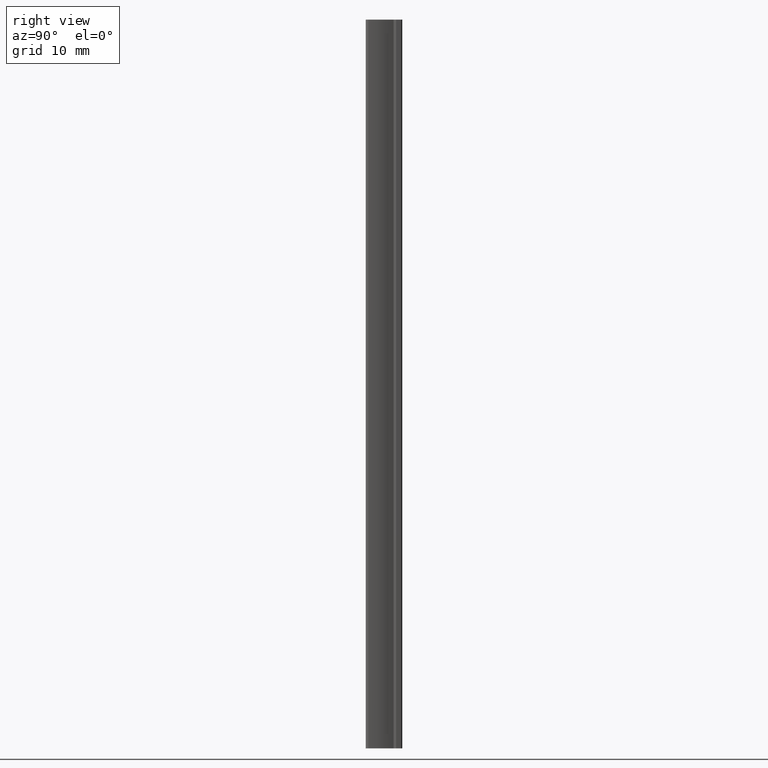
[diagram: clean part render]
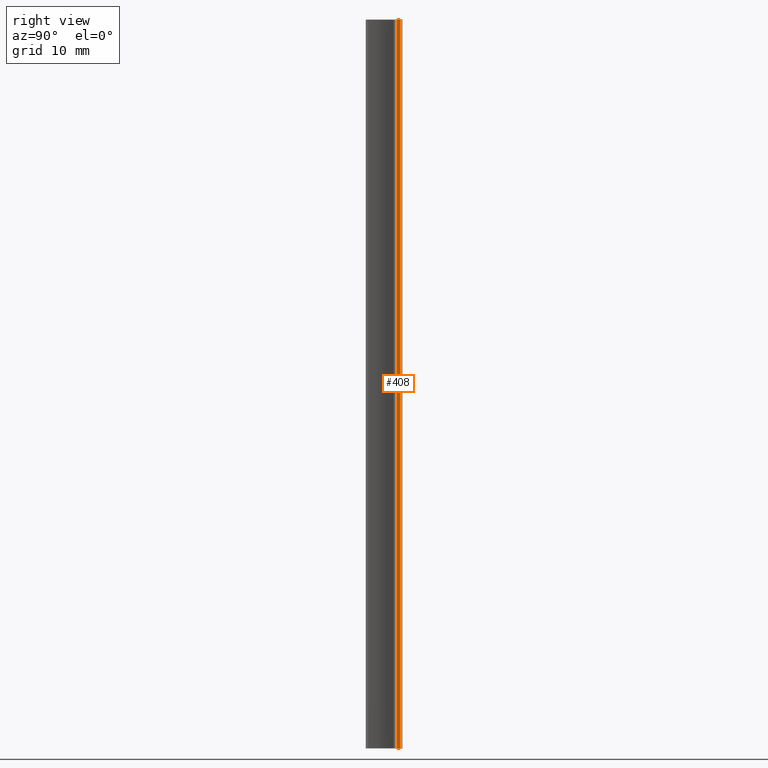
[diagram: same view with one face highlighted and labeled with its STEP entity id]
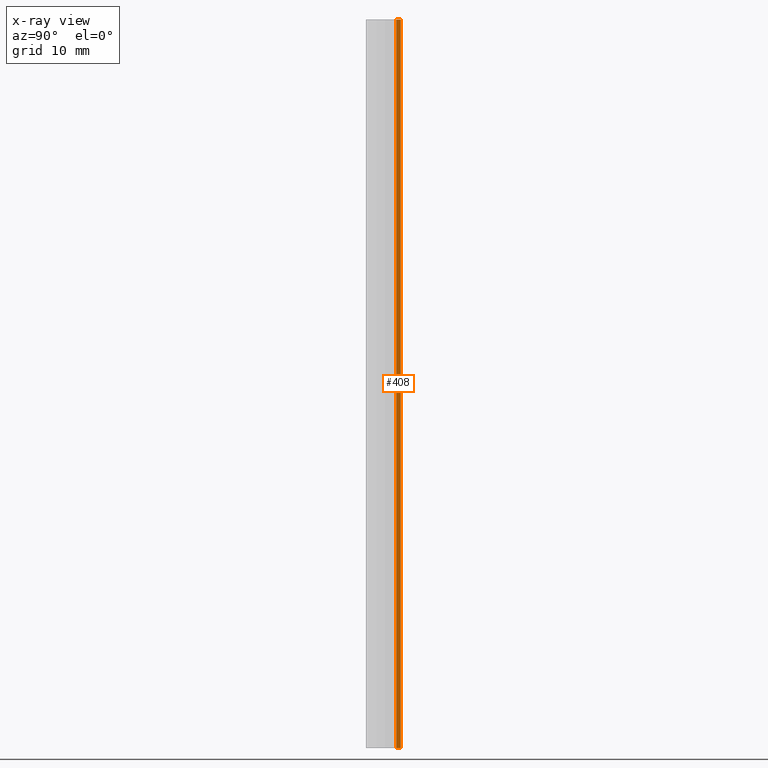
[diagram: x-ray of the same camera — body ghosted, the highlighted face saturated]
A machine part, right view. The second image highlights one B-rep face of the part: STEP entity #408.
The next image is the same camera in x-ray: the body ghosted, the highlighted face saturated — about 0% of this face is hidden behind the body in this view.
In plain terms, the highlighted planar face has unit normal (1, 0, 0).
Its self-contained STEP definition (entity closure, byte-faithful):
#20=PLANE('',#474);
#38=FACE_OUTER_BOUND('',#60,.T.);
#60=EDGE_LOOP('',(#335,#336,#337,#338));
#88=LINE('',#703,#120);
#93=LINE('',#720,#125);
#94=LINE('',#723,#126);
#95=LINE('',#726,#127);
#120=VECTOR('',#568,10.);
#125=VECTOR('',#587,10.);
#126=VECTOR('',#590,10.);
#127=VECTOR('',#595,10.);
#189=VERTEX_POINT('',#700);
#190=VERTEX_POINT('',#702);
#195=VERTEX_POINT('',#718);
#196=VERTEX_POINT('',#722);
#239=EDGE_CURVE('',#189,#190,#88,.T.);
#248=EDGE_CURVE('',#195,#189,#93,.T.);
#249=EDGE_CURVE('',#190,#196,#94,.T.);
#251=EDGE_CURVE('',#196,#195,#95,.T.);
#335=ORIENTED_EDGE('',*,*,#248,.F.);
#336=ORIENTED_EDGE('',*,*,#251,.F.);
#337=ORIENTED_EDGE('',*,*,#249,.F.);
#338=ORIENTED_EDGE('',*,*,#239,.F.);
#408=ADVANCED_FACE('',(#38),#20,.T.);
#474=AXIS2_PLACEMENT_3D('',#725,#593,#594);
#568=DIRECTION('',(0.,1.,0.));
#587=DIRECTION('',(0.,0.,1.));
#590=DIRECTION('',(0.,0.,-1.));
#593=DIRECTION('center_axis',(1.,0.,0.));
#594=DIRECTION('ref_axis',(0.,1.,0.));
#595=DIRECTION('',(0.,-1.,0.));
#700=CARTESIAN_POINT('',(3.6,2.2,100.));
#702=CARTESIAN_POINT('',(3.6,2.8,100.));
#703=CARTESIAN_POINT('',(3.6,3.,100.));
#718=CARTESIAN_POINT('',(3.6,2.2,0.));
#720=CARTESIAN_POINT('',(3.6,2.2,0.));
#722=CARTESIAN_POINT('',(3.6,2.8,0.));
#723=CARTESIAN_POINT('',(3.6,2.8,0.));
#725=CARTESIAN_POINT('Origin',(3.6,2.,0.));
#726=CARTESIAN_POINT('',(3.6,3.,0.));